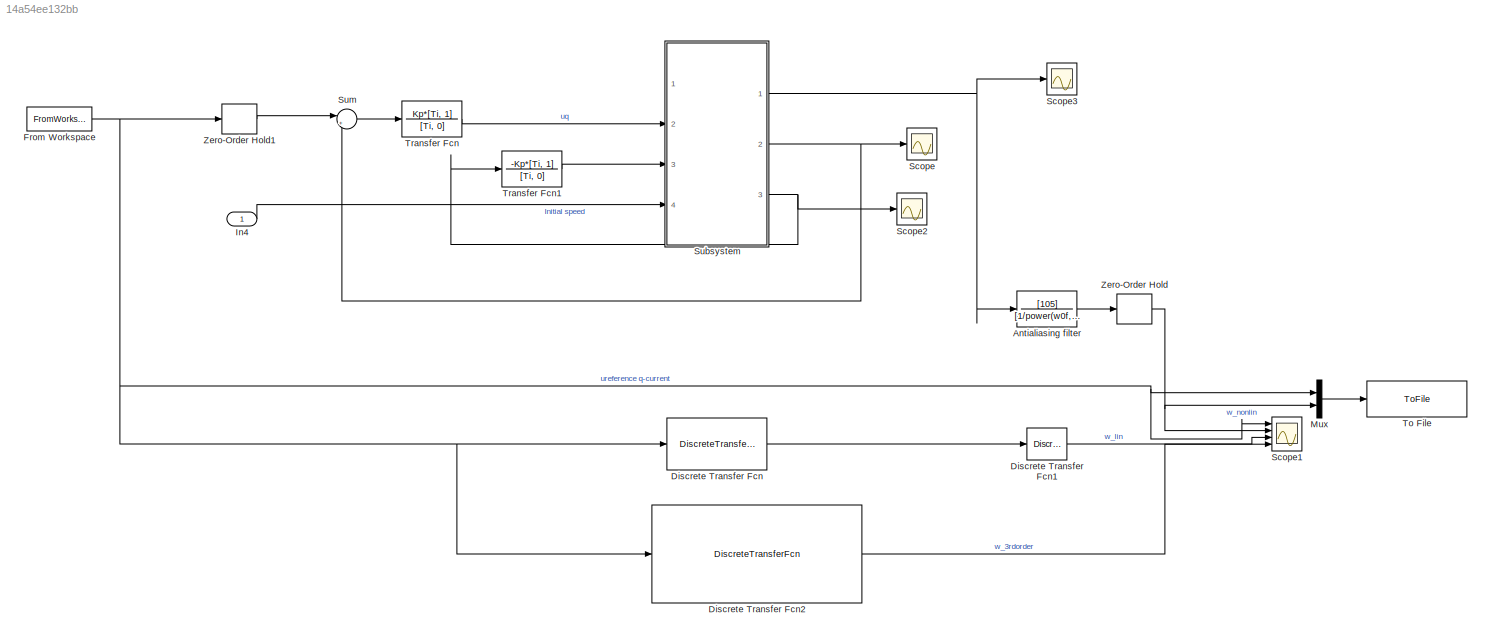
MODEL slx_14a54ee132bb
KIND model
CONFIG AbsTol = auto
CONFIG EnableMultiTasking = off
CONFIG FixedStep = auto
CONFIG MaxStep = auto
CONFIG MinStep = auto
CONFIG RelTol = 1e-3
CONFIG SampleTimeConstraint = Unconstrained
CONFIG Solver = VariableStepAuto
CONFIG SolverName = VariableStepAuto
CONFIG StartTime = 0.0
CONFIG StopTime = 16
WORKSPACE source: MATLAB code (in-file)
WORKSPACE np = 4
WORKSPACE phiv = 0.1167
WORKSPACE Kt = 3/2*np*phiv  (= 0.7002)
WORKSPACE f = 7.43e-5  (= 7.43e-05)
WORKSPACE J = 1.74e-4  (= 0.000174)
WORKSPACE L = 0.004
WORKSPACE Ld = L  (= 0.004)
WORKSPACE Lq = L  (= 0.004)
WORKSPACE Rs = 1.74
WORKSPACE Kp = 50
WORKSPACE Ki = 2500
WORKSPACE Ti = Kp/Ki  (= 0.02)
WORKSPACE h = 1e-2  (= 0.01)
WORKSPACE wN = pi/h  (= 314.159265359)
WORKSPACE wBf = 0.7*wN  (= 219.911485751)
WORKSPACE w0f = wBf/2.11  (= 104.223452963)
BLOCK [TransferFcn] Antialiasing filter
  Denominator = [1/power(w0f,4), 10/power(w0f, 3), 45/power(w0f, 2), 105/w0f, 105]
  Numerator = [105]
BLOCK [DiscreteTransferFcn] Discrete Transfer Fcn
  Denominator = [1 -0.996]
  InputPortMap = u0
  Numerator = [40, 0]
  Ports = [1, 1]
  SampleTime = h
BLOCK [DiscreteTransferFcn] Discrete Transfer Fcn1
  Denominator = [1 0]
  InputPortMap = u0
  Ports = [1, 1]
  SampleTime = h
BLOCK [DiscreteTransferFcn] Discrete Transfer Fcn2
  Denominator = [1 a1, a2, a3]
  InputPortMap = u0
  Numerator = [b0, b1]
  Ports = [1, 1]
  SampleTime = h
BLOCK [FromWorkspace] From Workspace
  SampleTime = h
  VariableName = u_input_val
  ZeroCross = on
BLOCK [Inport] In4
  IconDisplay = Port number
BLOCK [Mux] Mux
  DisplayOption = bar
  Inputs = 2
  Ports = [2, 1]
BLOCK [Scope] Scope
  Floating = off
  NumInputPorts = 1
  Ports = [1]
  ScopeSpecificationString = Simulink.scopes.TimeScopeBlockCfg('CurrentConfiguration', extmgr.ConfigurationSet(extmgr.Configuration('Core','General UI',true),extmgr.Configuration('Core','Source UI',true),extmgr.Configuration('Sources','WiredSimulink',true),extmgr.Configuration('Visuals','Time Domain',true,'SerializedDisplays',{struct('MinYLimReal','-0.11961','MaxYLimReal','1.07649','YLabelReal','','MinYLimMag','0.00000','MaxY...<+1405ch>
BLOCK [Scope] Scope1
  Floating = off
  NumInputPorts = 4
  Ports = [4]
  ScopeSpecificationString = Simulink.scopes.TimeScopeBlockCfg('CurrentConfiguration', extmgr.ConfigurationSet(extmgr.Configuration('Core','General UI',true),extmgr.Configuration('Core','Source UI',true),extmgr.Configuration('Sources','WiredSimulink',true,'DataLoggingVariableName','ScopeData1'),extmgr.Configuration('Visuals','Time Domain',true,'SerializedDisplays',{struct('MinYLimReal','-1.25','MaxYLimReal','1.25','YLabelReal...<+2544ch>
BLOCK [Scope] Scope2
  Floating = off
  NumInputPorts = 1
  Ports = [1]
  ScopeSpecificationString = Simulink.scopes.TimeScopeBlockCfg('CurrentConfiguration', extmgr.ConfigurationSet(extmgr.Configuration('Core','General UI',true),extmgr.Configuration('Core','Source UI',true),extmgr.Configuration('Sources','WiredSimulink',true,'DataLoggingVariableName','ScopeData2'),extmgr.Configuration('Visuals','Time Domain',true,'SerializedDisplays',{struct('MinYLimReal','-0.70872','MaxYLimReal','0.6155','YLabe...<+1422ch>
BLOCK [Scope] Scope3
  Floating = off
  NumInputPorts = 1
  Ports = [1]
  ScopeSpecificationString = Simulink.scopes.TimeScopeBlockCfg('CurrentConfiguration', extmgr.ConfigurationSet(extmgr.Configuration('Core','General UI',true),extmgr.Configuration('Core','Source UI',true),extmgr.Configuration('Sources','WiredSimulink',true,'DataLoggingVariableName','ScopeData1'),extmgr.Configuration('Visuals','Time Domain',true,'SerializedDisplays',{struct('MinYLimReal','-0.11961','MaxYLimReal','1.07649','YLab...<+1444ch>
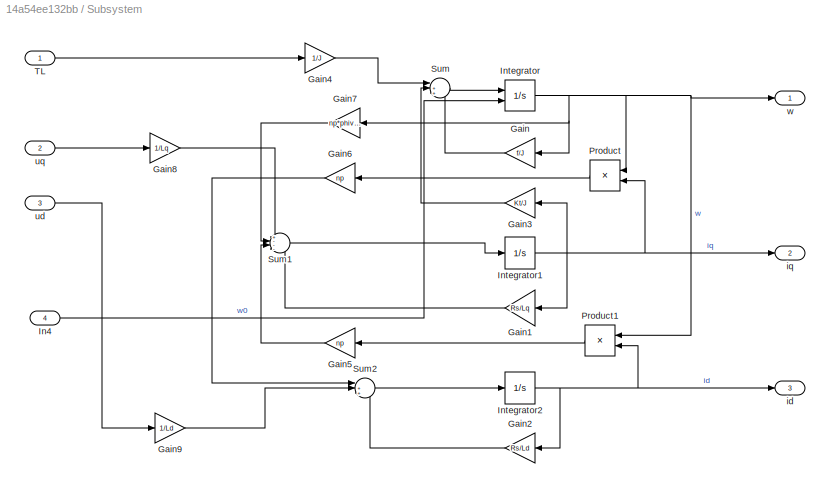
BLOCK [SubSystem] Subsystem
  Ports = [4, 3]
  RequestExecContextInheritance = off
BLOCK [Gain] Subsystem/Gain
  Gain = f/J
  OutDataTypeStr = Inherit: Inherit via internal rule
  ParamDataTypeStr = Inherit: Inherit via internal rule
  SaturateOnIntegerOverflow = off
BLOCK [Gain] Subsystem/Gain1
  Gain = Rs/Lq
  OutDataTypeStr = Inherit: Inherit via internal rule
  ParamDataTypeStr = Inherit: Inherit via internal rule
  SaturateOnIntegerOverflow = off
BLOCK [Gain] Subsystem/Gain2
  Gain = Rs/Ld
  OutDataTypeStr = Inherit: Inherit via internal rule
  ParamDataTypeStr = Inherit: Inherit via internal rule
  SaturateOnIntegerOverflow = off
BLOCK [Gain] Subsystem/Gain3
  Gain = Kt/J
  OutDataTypeStr = Inherit: Inherit via internal rule
  ParamDataTypeStr = Inherit: Inherit via internal rule
  SaturateOnIntegerOverflow = off
BLOCK [Gain] Subsystem/Gain4
  Gain = 1/J
  OutDataTypeStr = Inherit: Inherit via internal rule
  ParamDataTypeStr = Inherit: Inherit via internal rule
  SaturateOnIntegerOverflow = off
BLOCK [Gain] Subsystem/Gain5
  Gain = np
  OutDataTypeStr = Inherit: Inherit via internal rule
  ParamDataTypeStr = Inherit: Inherit via internal rule
  SaturateOnIntegerOverflow = off
BLOCK [Gain] Subsystem/Gain6
  Gain = np
  OutDataTypeStr = Inherit: Inherit via internal rule
  ParamDataTypeStr = Inherit: Inherit via internal rule
  SaturateOnIntegerOverflow = off
BLOCK [Gain] Subsystem/Gain7
  Gain = np*phiv/Lq
  OutDataTypeStr = Inherit: Inherit via internal rule
  ParamDataTypeStr = Inherit: Inherit via internal rule
  SaturateOnIntegerOverflow = off
BLOCK [Gain] Subsystem/Gain8
  Gain = 1/Lq
  OutDataTypeStr = Inherit: Inherit via internal rule
  ParamDataTypeStr = Inherit: Inherit via internal rule
  SaturateOnIntegerOverflow = off
BLOCK [Gain] Subsystem/Gain9
  Gain = 1/Ld
  OutDataTypeStr = Inherit: Inherit via internal rule
  ParamDataTypeStr = Inherit: Inherit via internal rule
  SaturateOnIntegerOverflow = off
BLOCK [Inport] Subsystem/In4
  IconDisplay = Port number
  Port = 4
BLOCK [Integrator] Subsystem/Integrator
  InitialConditionSource = external
  Ports = [2, 1]
BLOCK [Integrator] Subsystem/Integrator1
  Ports = [1, 1]
BLOCK [Integrator] Subsystem/Integrator2
  Ports = [1, 1]
BLOCK [Product] Subsystem/Product
  InputSameDT = off
  OutDataTypeStr = Inherit: Inherit via internal rule
  Ports = [2, 1]
  RndMeth = Floor
  SaturateOnIntegerOverflow = off
BLOCK [Product] Subsystem/Product1
  InputSameDT = off
  OutDataTypeStr = Inherit: Inherit via internal rule
  Ports = [2, 1]
  RndMeth = Floor
  SaturateOnIntegerOverflow = off
BLOCK [Sum] Subsystem/Sum
  IconShape = round
  InputSameDT = off
  Inputs = |++-
  OutDataTypeStr = Inherit: Inherit via internal rule
  Ports = [3, 1]
  SaturateOnIntegerOverflow = off
BLOCK [Sum] Subsystem/Sum1
  IconShape = round
  InputSameDT = off
  Inputs = +---
  OutDataTypeStr = Inherit: Inherit via internal rule
  Ports = [4, 1]
  SaturateOnIntegerOverflow = off
BLOCK [Sum] Subsystem/Sum2
  IconShape = round
  InputSameDT = off
  Inputs = |++-
  OutDataTypeStr = Inherit: Inherit via internal rule
  Ports = [3, 1]
  SaturateOnIntegerOverflow = off
BLOCK [Inport] Subsystem/TL
  IconDisplay = Port number
BLOCK [Outport] Subsystem/id
  IconDisplay = Port number
  Port = 3
BLOCK [Outport] Subsystem/iq
  IconDisplay = Port number
  Port = 2
BLOCK [Inport] Subsystem/ud
  IconDisplay = Port number
  Port = 3
BLOCK [Inport] Subsystem/uq
  IconDisplay = Port number
  Port = 2
BLOCK [Outport] Subsystem/w
  IconDisplay = Port number
BLOCK [Sum] Sum
  IconShape = round
  InputSameDT = off
  Inputs = |+-
  OutDataTypeStr = Inherit: Inherit via internal rule
  Ports = [2, 1]
  SaturateOnIntegerOverflow = off
BLOCK [ToFile] To File
  Filename = pmsm_sysid_sim.mat
  MatrixName = uy
  Ports = [1]
  SaveFormat = Timeseries
BLOCK [TransferFcn] Transfer Fcn
  Denominator = [Ti, 0]
  Numerator = Kp*[Ti, 1]
BLOCK [TransferFcn] Transfer Fcn1
  Denominator = [Ti, 0]
  Numerator = -Kp*[Ti, 1]
BLOCK [ZeroOrderHold] Zero-Order Hold
  SampleTime = h
BLOCK [ZeroOrderHold] Zero-Order Hold1
  SampleTime = h
LINE Antialiasing filter:1 -> Zero-Order Hold:1
LINE Discrete Transfer Fcn1:1 -> Scope1:3
LINE Discrete Transfer Fcn2:1 -> Scope1:4
LINE Discrete Transfer Fcn:1 -> Discrete Transfer Fcn1:1
NET From Workspace:1 -> Discrete Transfer Fcn2:1, Discrete Transfer Fcn:1, Mux:1, Scope1:1, Zero-Order Hold1:1
LINE In4:1 -> Subsystem:4
LINE Mux:1 -> To File:1
LINE Subsystem/Gain1:1 -> Subsystem/Sum1:4
LINE Subsystem/Gain2:1 -> Subsystem/Sum2:3
LINE Subsystem/Gain3:1 -> Subsystem/Sum:2
LINE Subsystem/Gain4:1 -> Subsystem/Sum:1
LINE Subsystem/Gain5:1 -> Subsystem/Sum1:3
LINE Subsystem/Gain6:1 -> Subsystem/Sum2:1
LINE Subsystem/Gain7:1 -> Subsystem/Sum1:2
LINE Subsystem/Gain8:1 -> Subsystem/Sum1:1
LINE Subsystem/Gain9:1 -> Subsystem/Sum2:2
LINE Subsystem/Gain:1 -> Subsystem/Sum:3
LINE Subsystem/In4:1 -> Subsystem/Integrator:2
NET Subsystem/Integrator1:1 -> Subsystem/Gain1:1, Subsystem/Gain3:1, Subsystem/Product:2, Subsystem/iq:1
NET Subsystem/Integrator2:1 -> Subsystem/Gain2:1, Subsystem/Product1:2, Subsystem/id:1
NET Subsystem/Integrator:1 -> Subsystem/Gain7:1, Subsystem/Gain:1, Subsystem/Product1:1, Subsystem/Product:1, Subsystem/w:1
LINE Subsystem/Product1:1 -> Subsystem/Gain5:1
LINE Subsystem/Product:1 -> Subsystem/Gain6:1
LINE Subsystem/Sum1:1 -> Subsystem/Integrator1:1
LINE Subsystem/Sum2:1 -> Subsystem/Integrator2:1
LINE Subsystem/Sum:1 -> Subsystem/Integrator:1
LINE Subsystem/TL:1 -> Subsystem/Gain4:1
LINE Subsystem/ud:1 -> Subsystem/Gain9:1
LINE Subsystem/uq:1 -> Subsystem/Gain8:1
NET Subsystem:1 -> Antialiasing filter:1, Scope3:1
NET Subsystem:2 -> Scope:1, Sum:2
NET Subsystem:3 -> Scope2:1, Transfer Fcn1:1
LINE Sum:1 -> Transfer Fcn:1
LINE Transfer Fcn1:1 -> Subsystem:3
LINE Transfer Fcn:1 -> Subsystem:2
LINE Zero-Order Hold1:1 -> Sum:1
NET Zero-Order Hold:1 -> Mux:2, Scope1:2
note: NET lines group one-source signal fan-out (src -> all destinations, sorted); 1:1 wires keep LINE
